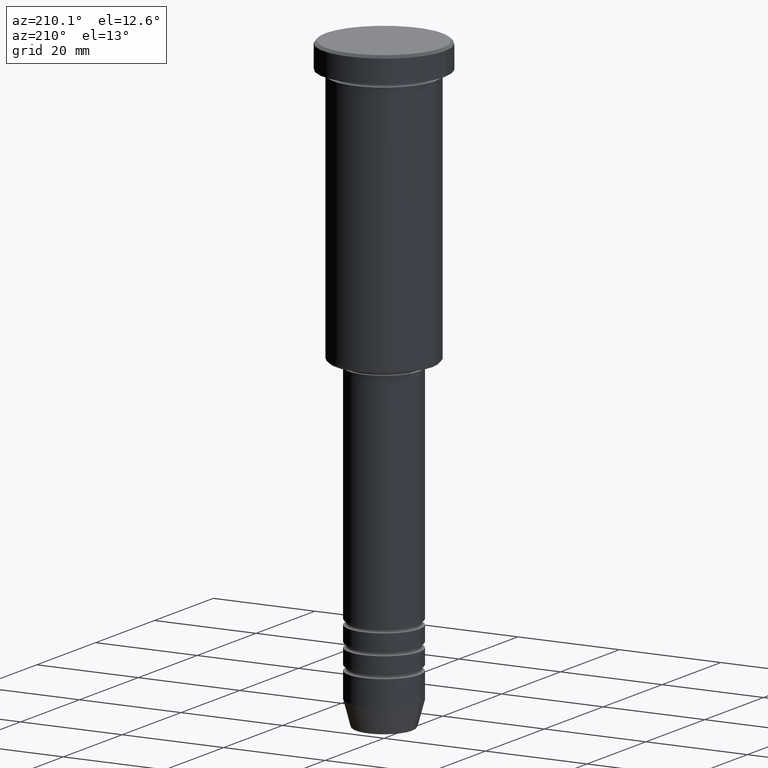
[diagram: clean part render]
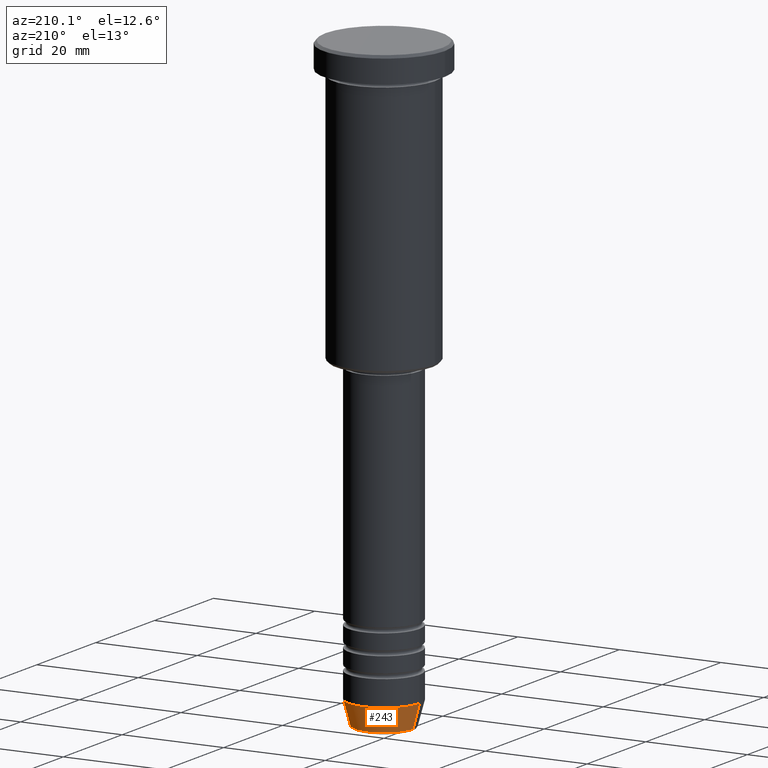
[diagram: same view with one face highlighted and labeled with its STEP entity id]
A machine part, auxiliary view. The second image highlights one B-rep face of the part: STEP entity #243.
In plain terms, the highlighted conical surface has half-angle 15 deg.
Its self-contained STEP definition (entity closure, byte-faithful):
#45 = ORIENTED_EDGE ( 'NONE', *, *, #287, .F. ) ;
#104 = CARTESIAN_POINT ( 'NONE',  ( -7.000000000000000888, 8.572527594031474176E-16, -114.9999999999999858 ) ) ;
#121 = EDGE_CURVE ( 'NONE', #484, #584, #944, .T. ) ;
#122 = DIRECTION ( 'NONE',  ( -0.000000000000000000, -0.000000000000000000, 1.000000000000000000 ) ) ;
#141 = FACE_OUTER_BOUND ( 'NONE', #643, .T. ) ;
#146 = CONICAL_SURFACE ( 'NONE', #829, 7.000000000000000888, 0.2617993877991500740 ) ;
#159 = VERTEX_POINT ( 'NONE', #982 ) ;
#162 = EDGE_CURVE ( 'NONE', #584, #359, #964, .T. ) ;
#178 = ORIENTED_EDGE ( 'NONE', *, *, #162, .T. ) ;
#182 = DIRECTION ( 'NONE',  ( -0.000000000000000000, -0.000000000000000000, 1.000000000000000000 ) ) ;
#243 = ADVANCED_FACE ( 'NONE', ( #141 ), #146, .T. ) ;
#270 = EDGE_CURVE ( 'NONE', #484, #159, #602, .T. ) ;
#287 = EDGE_CURVE ( 'NONE', #159, #359, #716, .T. ) ;
#339 = DIRECTION ( 'NONE',  ( -0.000000000000000000, -0.000000000000000000, 1.000000000000000000 ) ) ;
#359 = VERTEX_POINT ( 'NONE', #104 ) ;
#446 = ORIENTED_EDGE ( 'NONE', *, *, #270, .F. ) ;
#484 = VERTEX_POINT ( 'NONE', #876 ) ;
#507 = CARTESIAN_POINT ( 'NONE',  ( 7.000000000000000888, 0.000000000000000000, -114.9999999999999858 ) ) ;
#563 = ORIENTED_EDGE ( 'NONE', *, *, #121, .T. ) ;
#584 = VERTEX_POINT ( 'NONE', #883 ) ;
#602 = LINE ( 'NONE', #507, #1077 ) ;
#620 = CARTESIAN_POINT ( 'NONE',  ( 0.000000000000000000, 0.000000000000000000, -114.9999999999999858 ) ) ;
#628 = AXIS2_PLACEMENT_3D ( 'NONE', #1015, #122, #935 ) ;
#637 = DIRECTION ( 'NONE',  ( 1.000000000000000000, 0.000000000000000000, 0.000000000000000000 ) ) ;
#643 = EDGE_LOOP ( 'NONE', ( #563, #178, #45, #446 ) ) ;
#678 = DIRECTION ( 'NONE',  ( 1.000000000000000000, 0.000000000000000000, 0.000000000000000000 ) ) ;
#693 = DIRECTION ( 'NONE',  ( -0.2588190451025213501, 3.169619151431772337E-17, 0.9659258262890680902 ) ) ;
#704 = CARTESIAN_POINT ( 'NONE',  ( 0.000000000000000000, 0.000000000000000000, -114.9999999999999858 ) ) ;
#716 = CIRCLE ( 'NONE', #774, 7.000000000000000888 ) ;
#774 = AXIS2_PLACEMENT_3D ( 'NONE', #620, #182, #637 ) ;
#787 = VECTOR ( 'NONE', #693, 1000.000000000000000 ) ;
#829 = AXIS2_PLACEMENT_3D ( 'NONE', #704, #339, #678 ) ;
#876 = CARTESIAN_POINT ( 'NONE',  ( 5.759553456999433330, 0.000000000000000000, -119.6294095225512564 ) ) ;
#882 = CARTESIAN_POINT ( 'NONE',  ( -7.000000000000000888, 8.572527594031474176E-16, -114.9999999999999858 ) ) ;
#883 = CARTESIAN_POINT ( 'NONE',  ( -5.759553456999433330, 7.812973149831950787E-16, -119.6294095225512564 ) ) ;
#889 = DIRECTION ( 'NONE',  ( 0.2588190451025213501, 0.000000000000000000, 0.9659258262890680902 ) ) ;
#935 = DIRECTION ( 'NONE',  ( 1.000000000000000000, 0.000000000000000000, 0.000000000000000000 ) ) ;
#944 = CIRCLE ( 'NONE', #628, 5.759553456999433330 ) ;
#964 = LINE ( 'NONE', #882, #787 ) ;
#982 = CARTESIAN_POINT ( 'NONE',  ( 7.000000000000000888, 0.000000000000000000, -114.9999999999999858 ) ) ;
#1015 = CARTESIAN_POINT ( 'NONE',  ( 0.000000000000000000, 0.000000000000000000, -119.6294095225512564 ) ) ;
#1077 = VECTOR ( 'NONE', #889, 1000.000000000000000 ) ;